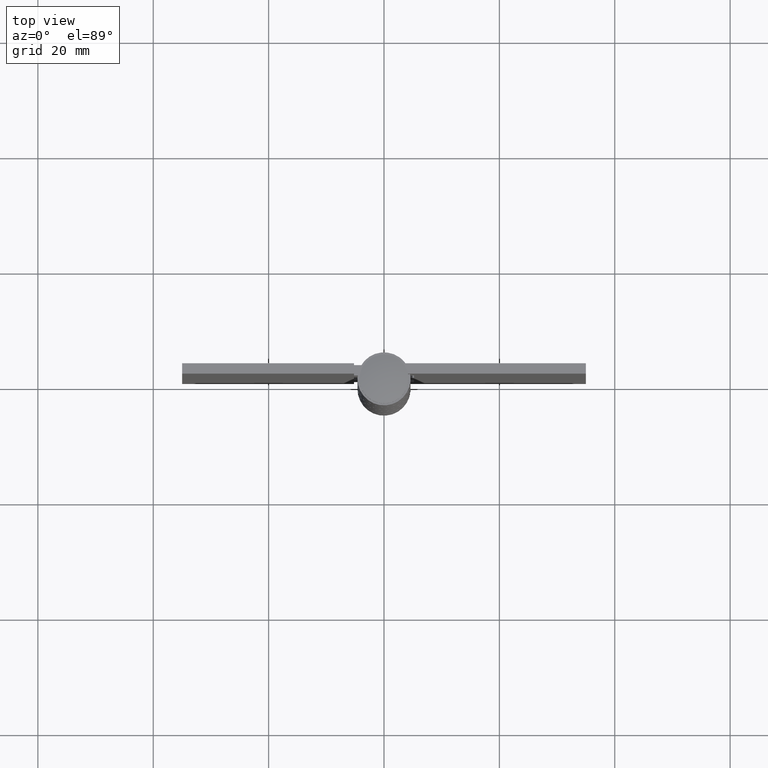
[diagram: clean part render]
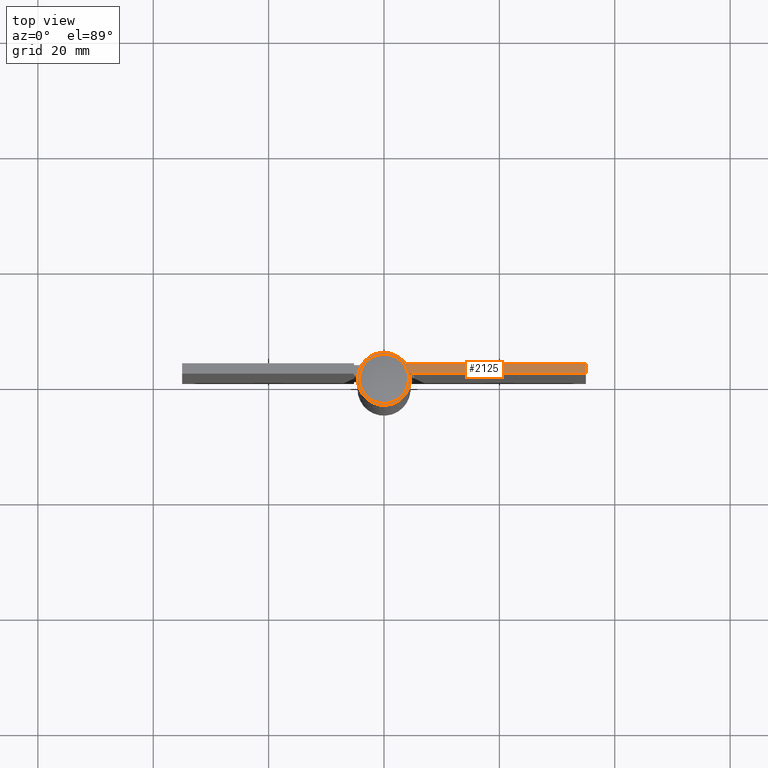
[diagram: same view with one face highlighted and labeled with its STEP entity id]
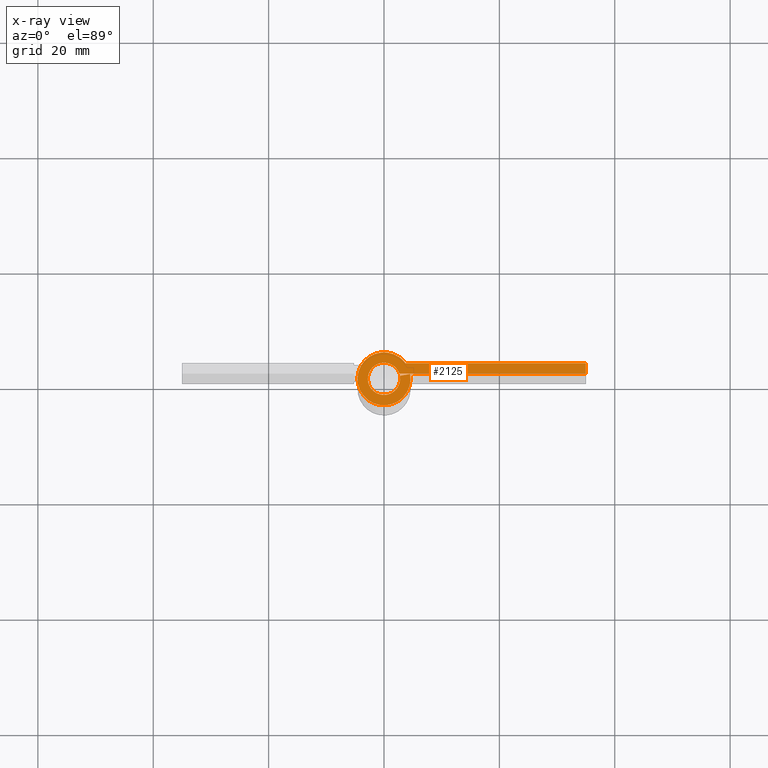
[diagram: x-ray of the same camera — body ghosted, the highlighted face saturated]
A machine part, top view. The second image highlights one B-rep face of the part: STEP entity #2125.
The next image is the same camera in x-ray: the body ghosted, the highlighted face saturated — about 0% of this face is hidden behind the body in this view.
In plain terms, the highlighted face is a freeform B-spline surface patch.
Its self-contained STEP definition (entity closure, byte-faithful):
#1305=CARTESIAN_POINT('',(2.651414716712585,0.900000000000034,102.000015000000000));
#1306=VERTEX_POINT('',#1305);
#1312=CARTESIAN_POINT('',(2.751782374786455,0.517391304347850,102.000015000000000));
#1313=VERTEX_POINT('',#1312);
#1314=CARTESIAN_POINT('',(2.751782374786455,0.517391304347850,102.000015000000000));
#1315=CARTESIAN_POINT('',(2.793218121230559,0.297350278362191,102.000015000000100));
#1316=CARTESIAN_POINT('',(2.821329263163994,-0.130226625245750,102.000015000000000));
#1317=CARTESIAN_POINT('',(2.716023017853369,-0.774851109329425,102.000014999999910));
#1318=CARTESIAN_POINT('',(2.467397016756138,-1.379831086375436,102.000015000000000));
#1319=CARTESIAN_POINT('',(2.095390272552088,-1.890161888356622,102.000015000000400));
#1320=CARTESIAN_POINT('',(1.691243603094451,-2.248159492561421,102.000014999999490));
#1321=CARTESIAN_POINT('',(1.233906578790016,-2.533052084466222,102.000015000000000));
#1322=CARTESIAN_POINT('',(0.728349781458639,-2.726337347257090,102.000015000000400));
#1323=CARTESIAN_POINT('',(0.194475919354356,-2.806544326719139,102.000014999999910));
#1324=CARTESIAN_POINT('',(-0.321760222454473,-2.796871026171731,102.000015000000100));
#1325=CARTESIAN_POINT('',(-0.962182334231197,-2.668196498753274,102.000015000000000));
#1326=CARTESIAN_POINT('',(-1.648970814958260,-2.315361648438829,102.000015000000000));
#1327=CARTESIAN_POINT('',(-2.181706056754397,-1.793934577265834,102.000015000000200));
#1328=CARTESIAN_POINT('',(-2.484406910554771,-1.319948963290127,102.000015000000200));
#1329=CARTESIAN_POINT('',(-2.676943071287029,-0.865155928075821,102.000014999999610));
#1330=CARTESIAN_POINT('',(-2.791003921009724,-0.383623023964383,102.000015000003600));
#1331=CARTESIAN_POINT('',(-2.815725007498984,0.223244597910587,102.000014999997600));
#1332=CARTESIAN_POINT('',(-2.702179043598200,0.822446305748806,102.000015000001000));
#1333=CARTESIAN_POINT('',(-2.457104589845238,1.378221052903045,102.000014999999810));
#1334=CARTESIAN_POINT('',(-2.136253946463090,1.840110160613858,102.000015000000100));
#1335=CARTESIAN_POINT('',(-1.728001763959600,2.227921044480346,102.000015000000000));
#1336=CARTESIAN_POINT('',(-1.250253378883558,2.524607480224694,102.000015000000000));
#1337=CARTESIAN_POINT('',(-0.661675865995054,2.748863384194125,102.000015000000100));
#1338=CARTESIAN_POINT('',(0.034294410727792,2.835587615666943,102.000015000000000));
#1339=CARTESIAN_POINT('',(0.726436987727337,2.729540163399723,102.000015000000100));
#1340=CARTESIAN_POINT('',(1.332324524893826,2.487613029612326,102.000014999999610));
#1341=CARTESIAN_POINT('',(1.780339284388925,2.183860325302235,102.000015000000300));
#1342=CARTESIAN_POINT('',(2.287211056365593,1.674702679588177,102.000015000001100));
#1343=CARTESIAN_POINT('',(2.536587769085397,1.239436811286884,102.000015000000900));
#1344=CARTESIAN_POINT('',(2.651414716712585,0.900000000000034,102.000015000000000));
#1345=B_SPLINE_CURVE_WITH_KNOTS('',3,(#1314,#1315,#1316,#1317,#1318,#1319,#1320,#1321,#1322,#1323,#1324,#1325,#1326,#1327,#1328,#1329,#1330,#1331,#1332,#1333,#1334,#1335,#1336,#1337,#1338,#1339,#1340,#1341,#1342,#1343,#1344),.UNSPECIFIED.,.F.,.U.,(4,1,1,1,1,1,1,1,1,1,1,1,1,1,1,1,1,1,1,1,1,1,1,1,1,1,1,1,4),(0.000000626487008,0.671716595145327,1.276364827770975,1.948144043150601,2.619935040684432,3.157387115528657,3.560465758158342,4.232209313487406,4.769558553866352,5.172639990455611,5.777248438007144,6.717760495156748,7.456748750456514,7.994184469971156,8.397242589362925,8.934558063170439,9.471984960704464,10.210984079201671,10.748406109510190,11.285828142922920,11.890466518899981,12.427901443593850,12.965243335836220,13.771345822418249,14.510344939452230,15.047766970795539,15.719552991959951,16.122646440812780,17.197447401438389),.UNSPECIFIED.);
#1346=EDGE_CURVE('',#1313,#1306,#1345,.T.);
#1634=CARTESIAN_POINT('',(35.0,0.900000000000034,102.000015000000000));
#1635=VERTEX_POINT('',#1634);
#1641=CARTESIAN_POINT('',(35.0,0.900000000000034,102.000015000000000));
#1642=CARTESIAN_POINT('',(2.651414716712585,0.900000000000034,102.000015000000000));
#1643=QUASI_UNIFORM_CURVE('',1,(#1641,#1642),.UNSPECIFIED.,.F.,.U.);
#1644=EDGE_CURVE('',#1635,#1306,#1643,.T.);
#2060=CARTESIAN_POINT('',(-6.577960461496741,-5.059495078448174,102.000015000000000));
#2061=CARTESIAN_POINT('',(36.978018155834938,-5.059495078448174,102.000015000000000));
#2062=CARTESIAN_POINT('',(-6.577960461496741,5.059457203850373,102.000015000000000));
#2063=CARTESIAN_POINT('',(36.978018155834938,5.059457203850373,102.000015000000000));
#2064=B_SPLINE_SURFACE_WITH_KNOTS('',1,1,((#2060,#2062),(#2061,#2063)),.UNSPECIFIED.,.F.,.F.,.U.,(2,2),(2,2),(0.0,43.555978617331682),(0.0,10.118952282298549),.UNSPECIFIED.);
#2065=CARTESIAN_POINT('',(4.520785330006300,0.850000000000038,102.000015000000000));
#2066=VERTEX_POINT('',#2065);
#2067=CARTESIAN_POINT('',(3.724245614886200,2.699999000000000,102.000015000000000));
#2068=VERTEX_POINT('',#2067);
#2069=CARTESIAN_POINT('',(4.520785330006300,0.850000000000038,102.000015000000000));
#2070=CARTESIAN_POINT('',(4.618161666109116,0.334211506819347,102.000015000000100));
#2071=CARTESIAN_POINT('',(4.628050854160260,-0.375714561454119,102.000015000000000));
#2072=CARTESIAN_POINT('',(4.420050427907965,-1.334752188913707,102.000015000000000));
#2073=CARTESIAN_POINT('',(4.177539631854889,-1.975545206597114,102.000015000000000));
#2074=CARTESIAN_POINT('',(3.736218725813825,-2.733621386377836,102.000015000000100));
#2075=CARTESIAN_POINT('',(3.177768765069792,-3.368815141979100,102.000014999999710));
#2076=CARTESIAN_POINT('',(2.507001995375939,-3.878513857896923,102.000015000000400));
#2077=CARTESIAN_POINT('',(1.797257934822893,-4.262521486539318,102.000014999999810));
#2078=CARTESIAN_POINT('',(1.060681597180186,-4.501171259000748,102.000015000000200));
#2079=CARTESIAN_POINT('',(0.261527589837530,-4.610886280948202,102.000015000000400));
#2080=CARTESIAN_POINT('',(-0.458277466417806,-4.598258351290382,102.000014999999810));
#2081=CARTESIAN_POINT('',(-1.303938657309533,-4.441811547781589,102.000015000000200));
#2082=CARTESIAN_POINT('',(-2.171706636679322,-4.098288926314123,102.000015000000000));
#2083=CARTESIAN_POINT('',(-2.970820810884561,-3.552190479998495,102.000015000000000));
#2084=CARTESIAN_POINT('',(-3.656885122665190,-2.847057923897993,102.000015000000100));
#2085=CARTESIAN_POINT('',(-4.125297121921371,-2.100927474278029,102.000015000000000));
#2086=CARTESIAN_POINT('',(-4.496403168470993,-1.134680408435886,102.000015000000000));
#2087=CARTESIAN_POINT('',(-4.654791286478178,-0.086211038425080,102.000015000000000));
#2088=CARTESIAN_POINT('',(-4.517355326706630,1.069494692248928,102.000015000000000));
#2089=CARTESIAN_POINT('',(-4.183416363354954,1.977952093158851,102.000015000000100));
#2090=CARTESIAN_POINT('',(-3.722881803812260,2.745501207568479,102.000015000000000));
#2091=CARTESIAN_POINT('',(-3.082948174605935,3.470852968118265,102.000015000000000));
#2092=CARTESIAN_POINT('',(-2.174302942000328,4.111330137228392,102.000015000000000));
#2093=CARTESIAN_POINT('',(-1.216134004694675,4.468821811117078,102.000015000000000));
#2094=CARTESIAN_POINT('',(-0.367150157163930,4.603582901396448,102.000014999999610));
#2095=CARTESIAN_POINT('',(0.527976935606857,4.606900404495124,102.000015000002700));
#2096=CARTESIAN_POINT('',(1.459945410179388,4.405020276139008,102.000014999993400));
#2097=CARTESIAN_POINT('',(2.269975411597999,4.022055051743154,102.000015000007390));
#2098=CARTESIAN_POINT('',(3.024634855543721,3.510800703681142,102.000014999995100));
#2099=CARTESIAN_POINT('',(3.467661285884464,3.054208409437836,102.000015000003500));
#2100=CARTESIAN_POINT('',(3.724245614886200,2.699999000000000,102.000015000000000));
#2101=B_SPLINE_CURVE_WITH_KNOTS('',3,(#2069,#2070,#2071,#2072,#2073,#2074,#2075,#2076,#2077,#2078,#2079,#2080,#2081,#2082,#2083,#2084,#2085,#2086,#2087,#2088,#2089,#2090,#2091,#2092,#2093,#2094,#2095,#2096,#2097,#2098,#2099,#2100),.UNSPECIFIED.,.F.,.U.,(4,1,1,1,1,1,1,1,1,1,1,1,1,1,1,1,1,1,1,1,1,1,1,1,1,1,1,1,1,4),(0.000000692432184,1.574500877606820,2.099379658390760,2.939138597872130,3.621452820849925,4.723652384246655,5.458411753493451,6.140719034168072,7.137907125904722,7.767685643092516,8.554988901194609,9.289785114418333,10.339492064381981,11.336725756230100,12.176456846906319,13.278638380334391,13.960869426217760,15.273007193765411,16.427705519912109,17.424925848342781,18.159719142755652,19.104479630852929,20.311557047041891,21.466186470220730,22.148518790498269,22.883312085706009,24.142964401263121,24.982713122841901,25.560090017049429,26.872157519944491),.UNSPECIFIED.);
#2102=EDGE_CURVE('',#2066,#2068,#2101,.T.);
#2103=ORIENTED_EDGE('',*,*,#2102,.F.);
#2104=CARTESIAN_POINT('',(2.751782374786455,0.517391304347850,102.000015000000000));
#2105=CARTESIAN_POINT('',(4.520785330006300,0.850000000000038,102.000015000000000));
#2106=QUASI_UNIFORM_CURVE('',1,(#2104,#2105),.UNSPECIFIED.,.F.,.U.);
#2107=EDGE_CURVE('',#1313,#2066,#2106,.T.);
#2108=ORIENTED_EDGE('',*,*,#2107,.F.);
#2109=ORIENTED_EDGE('',*,*,#1346,.T.);
#2110=ORIENTED_EDGE('',*,*,#1644,.F.);
#2111=CARTESIAN_POINT('',(35.0,2.699999000000000,102.000015000000000));
#2112=VERTEX_POINT('',#2111);
#2113=CARTESIAN_POINT('',(35.0,2.699999000000000,102.000015000000000));
#2114=CARTESIAN_POINT('',(35.0,0.900000000000034,102.000015000000000));
#2115=QUASI_UNIFORM_CURVE('',1,(#2113,#2114),.UNSPECIFIED.,.F.,.U.);
#2116=EDGE_CURVE('',#2112,#1635,#2115,.T.);
#2117=ORIENTED_EDGE('',*,*,#2116,.F.);
#2118=CARTESIAN_POINT('',(3.724245614886200,2.699999000000000,102.000015000000000));
#2119=CARTESIAN_POINT('',(35.0,2.699999000000000,102.000015000000000));
#2120=QUASI_UNIFORM_CURVE('',1,(#2118,#2119),.UNSPECIFIED.,.F.,.U.);
#2121=EDGE_CURVE('',#2068,#2112,#2120,.T.);
#2122=ORIENTED_EDGE('',*,*,#2121,.F.);
#2123=EDGE_LOOP('',(#2103,#2108,#2109,#2110,#2117,#2122));
#2124=FACE_OUTER_BOUND('',#2123,.T.);
#2125=ADVANCED_FACE('',(#2124),#2064,.T.);